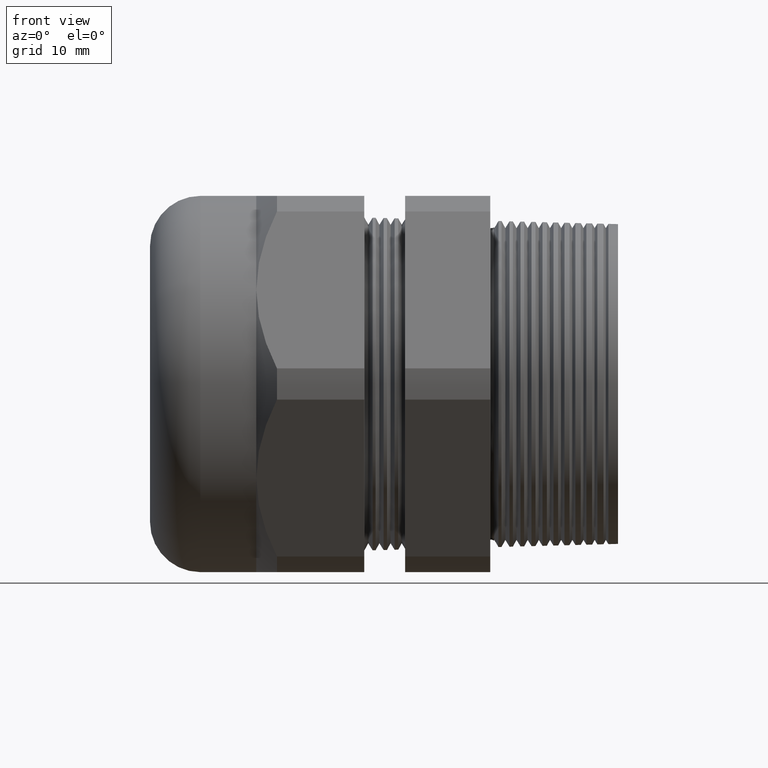
[diagram: clean part render]
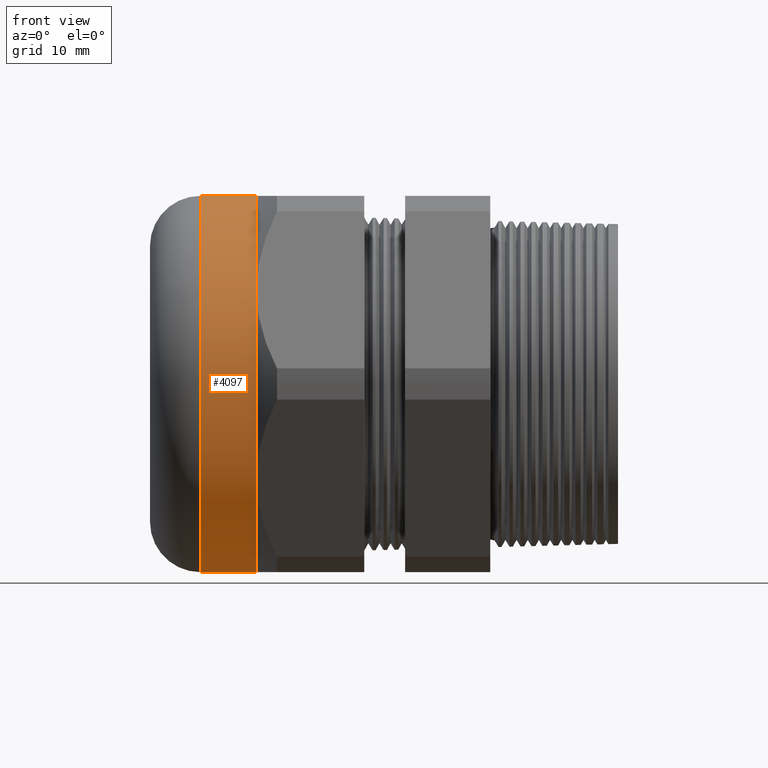
[diagram: same view with one face highlighted and labeled with its STEP entity id]
A machine part, front view. The second image highlights one B-rep face of the part: STEP entity #4097.
In plain terms, the highlighted cylindrical surface (partial cylindrical patch) has radius 26.543 mm, axis along (1, 0, 0).
Its self-contained STEP definition (entity closure, byte-faithful):
#116 = VERTEX_POINT ( 'NONE', #1470 ) ;
#118 = VERTEX_POINT ( 'NONE', #1469 ) ;
#444 = ORIENTED_EDGE ( 'NONE', *, *, #704, .F. ) ;
#445 = EDGE_LOOP ( 'NONE', ( #444, #742, #739, #719, #721, #725 ) ) ;
#636 = VERTEX_POINT ( 'NONE', #2385 ) ;
#703 = VERTEX_POINT ( 'NONE', #2538 ) ;
#704 = EDGE_CURVE ( 'NONE', #116, #703, #2537, .T. ) ;
#710 = VERTEX_POINT ( 'NONE', #2524 ) ;
#715 = EDGE_CURVE ( 'NONE', #4039, #710, #2580, .T. ) ;
#719 = ORIENTED_EDGE ( 'NONE', *, *, #715, .F. ) ;
#721 = ORIENTED_EDGE ( 'NONE', *, *, #724, .F. ) ;
#724 = EDGE_CURVE ( 'NONE', #636, #4039, #2569, .T. ) ;
#725 = ORIENTED_EDGE ( 'NONE', *, *, #790, .F. ) ;
#738 = EDGE_CURVE ( 'NONE', #116, #118, #2602, .T. ) ;
#739 = ORIENTED_EDGE ( 'NONE', *, *, #4077, .T. ) ;
#742 = ORIENTED_EDGE ( 'NONE', *, *, #738, .T. ) ;
#790 = EDGE_CURVE ( 'NONE', #703, #636, #2692, .T. ) ;
#1469 = CARTESIAN_POINT ( 'NONE',  ( -1.919999999999999500, 0.0000000000000000000, -1.044999999999999900 ) ) ;
#1470 = CARTESIAN_POINT ( 'NONE',  ( -1.919999999999999500, 1.279755905108984100E-016, 1.044999999999999900 ) ) ;
#2385 = CARTESIAN_POINT ( 'NONE',  ( -1.609449999999999400, -0.9049965469547385200, 0.5224999999999997400 ) ) ;
#2524 = CARTESIAN_POINT ( 'NONE',  ( -1.609449999999999400, 0.0000000000000000000, -1.045000000000000400 ) ) ;
#2534 = DIRECTION ( 'NONE',  ( 1.000000000000000000, 0.0000000000000000000, 0.0000000000000000000 ) ) ;
#2535 = VECTOR ( 'NONE', #2534, 39.37007874015748100 ) ;
#2536 = CARTESIAN_POINT ( 'NONE',  ( 0.0000000000000000000, 1.279755905108984100E-016, 1.044999999999999900 ) ) ;
#2537 = LINE ( 'NONE', #2536, #2535 ) ;
#2538 = CARTESIAN_POINT ( 'NONE',  ( -1.609449999999999400, 0.0000000000000000000, 1.044999999999999700 ) ) ;
#2565 = DIRECTION ( 'NONE',  ( 0.0000000000000000000, 0.0000000000000000000, -1.000000000000000000 ) ) ;
#2566 = DIRECTION ( 'NONE',  ( 1.000000000000000000, 0.0000000000000000000, 0.0000000000000000000 ) ) ;
#2567 = CARTESIAN_POINT ( 'NONE',  ( -1.609449999999999400, 0.0000000000000000000, 0.0000000000000000000 ) ) ;
#2568 = AXIS2_PLACEMENT_3D ( 'NONE', #2567, #2566, #2565 ) ;
#2569 = CIRCLE ( 'NONE', #2568, 1.045000000000000200 ) ;
#2576 = DIRECTION ( 'NONE',  ( 0.0000000000000000000, 0.0000000000000000000, -1.000000000000000000 ) ) ;
#2577 = DIRECTION ( 'NONE',  ( 1.000000000000000000, 0.0000000000000000000, 0.0000000000000000000 ) ) ;
#2578 = CARTESIAN_POINT ( 'NONE',  ( -1.609449999999999400, 0.0000000000000000000, 0.0000000000000000000 ) ) ;
#2579 = AXIS2_PLACEMENT_3D ( 'NONE', #2578, #2577, #2576 ) ;
#2580 = CIRCLE ( 'NONE', #2579, 1.045000000000000200 ) ;
#2598 = DIRECTION ( 'NONE',  ( 0.0000000000000000000, 0.0000000000000000000, 1.000000000000000000 ) ) ;
#2599 = DIRECTION ( 'NONE',  ( 1.000000000000000000, 0.0000000000000000000, 0.0000000000000000000 ) ) ;
#2600 = CARTESIAN_POINT ( 'NONE',  ( -1.919999999999999500, 0.0000000000000000000, 0.0000000000000000000 ) ) ;
#2601 = AXIS2_PLACEMENT_3D ( 'NONE', #2600, #2599, #2598 ) ;
#2602 = CIRCLE ( 'NONE', #2601, 1.044999999999999900 ) ;
#2688 = DIRECTION ( 'NONE',  ( 0.0000000000000000000, 0.0000000000000000000, -1.000000000000000000 ) ) ;
#2689 = DIRECTION ( 'NONE',  ( 1.000000000000000000, 0.0000000000000000000, 0.0000000000000000000 ) ) ;
#2690 = CARTESIAN_POINT ( 'NONE',  ( -1.609449999999999400, 0.0000000000000000000, 0.0000000000000000000 ) ) ;
#2691 = AXIS2_PLACEMENT_3D ( 'NONE', #2690, #2689, #2688 ) ;
#2692 = CIRCLE ( 'NONE', #2691, 1.045000000000000200 ) ;
#3604 = CARTESIAN_POINT ( 'NONE',  ( -1.609449999999999400, -0.9049965469547381900, -0.5225000000000000800 ) ) ;
#3650 = DIRECTION ( 'NONE',  ( 1.000000000000000000, 0.0000000000000000000, 0.0000000000000000000 ) ) ;
#3651 = VECTOR ( 'NONE', #3650, 39.37007874015748100 ) ;
#3652 = CARTESIAN_POINT ( 'NONE',  ( 0.0000000000000000000, 0.0000000000000000000, -1.044999999999999900 ) ) ;
#3656 = LINE ( 'NONE', #3652, #3651 ) ;
#3722 = DIRECTION ( 'NONE',  ( 0.0000000000000000000, 0.0000000000000000000, -1.000000000000000000 ) ) ;
#3723 = DIRECTION ( 'NONE',  ( 1.000000000000000000, 0.0000000000000000000, 0.0000000000000000000 ) ) ;
#3724 = CARTESIAN_POINT ( 'NONE',  ( 0.0000000000000000000, 0.0000000000000000000, 0.0000000000000000000 ) ) ;
#3725 = AXIS2_PLACEMENT_3D ( 'NONE', #3724, #3723, #3722 ) ;
#3727 = CYLINDRICAL_SURFACE ( 'NONE', #3725, 1.044999999999999900 ) ;
#3728 = FACE_OUTER_BOUND ( 'NONE', #445, .T. ) ;
#4039 = VERTEX_POINT ( 'NONE', #3604 ) ;
#4077 = EDGE_CURVE ( 'NONE', #118, #710, #3656, .T. ) ;
#4097 = ADVANCED_FACE ( 'NONE', ( #3728 ), #3727, .T. ) ;